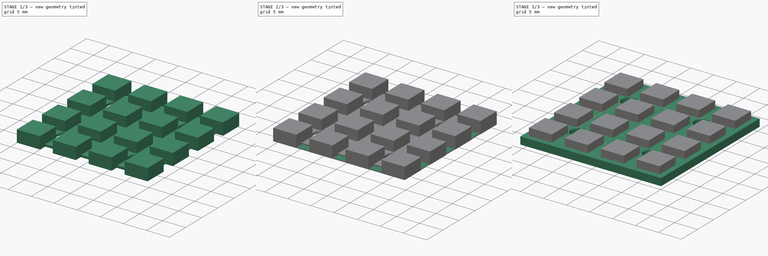
[diagram: build sequence overview — one tinted view per stage of 3, left to right]
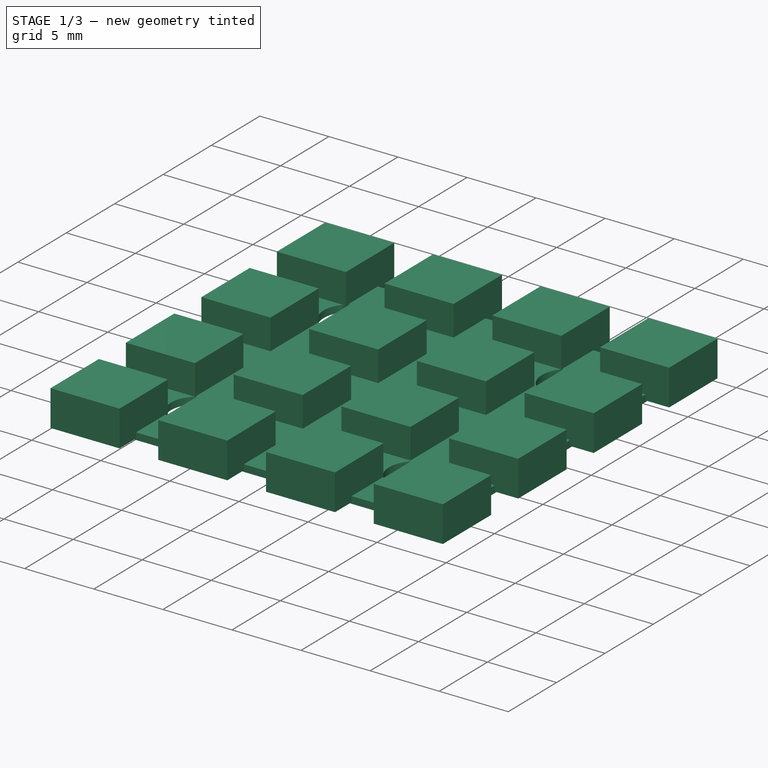
[diagram: stage 1 of 3 — iso view after this stage's code; geometry added in this stage tinted green]
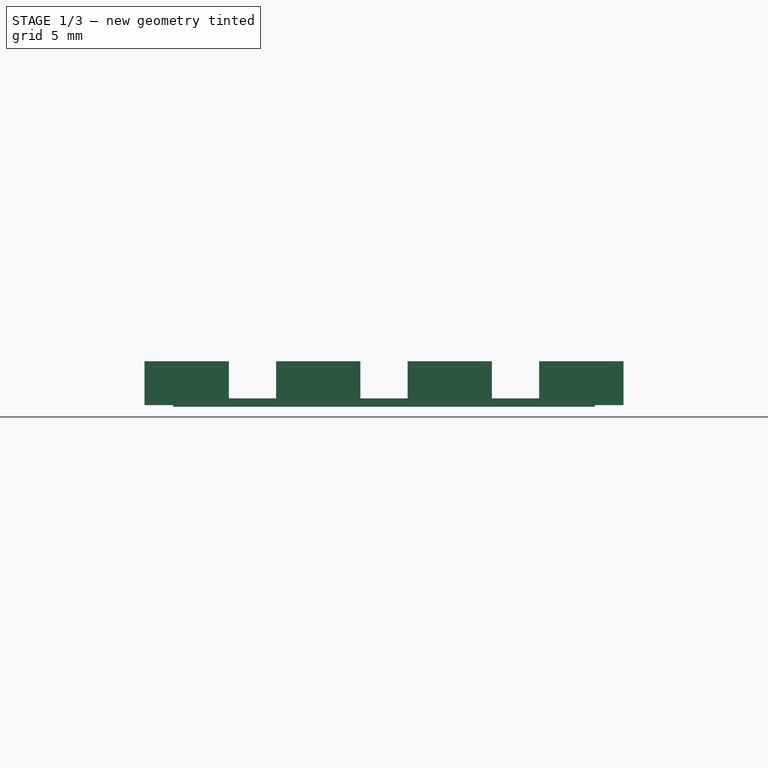
[diagram: stage 1 of 3 — front view after this stage's code; geometry added in this stage tinted green]
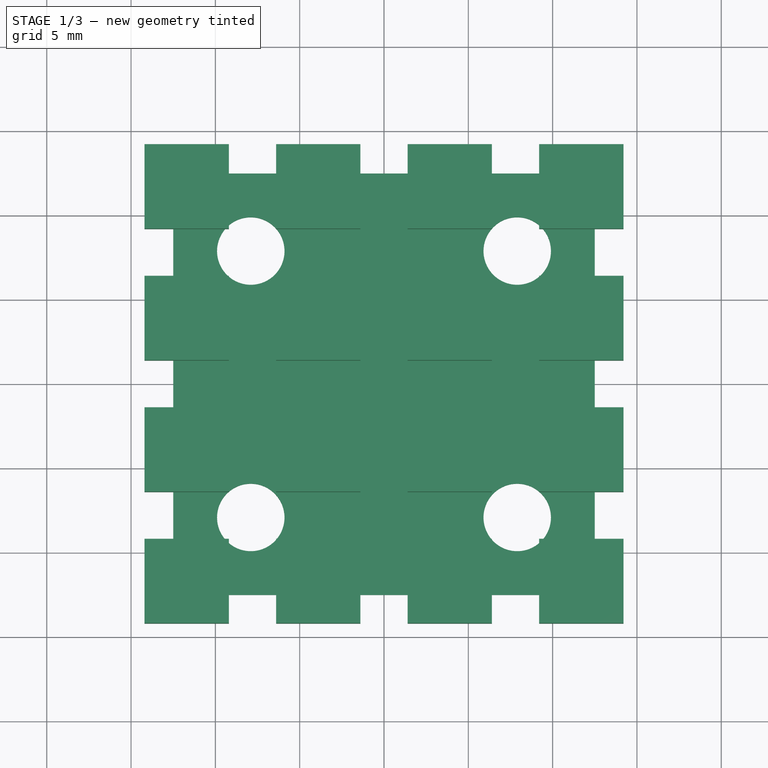
[diagram: stage 1 of 3 — top view after this stage's code; geometry added in this stage tinted green]
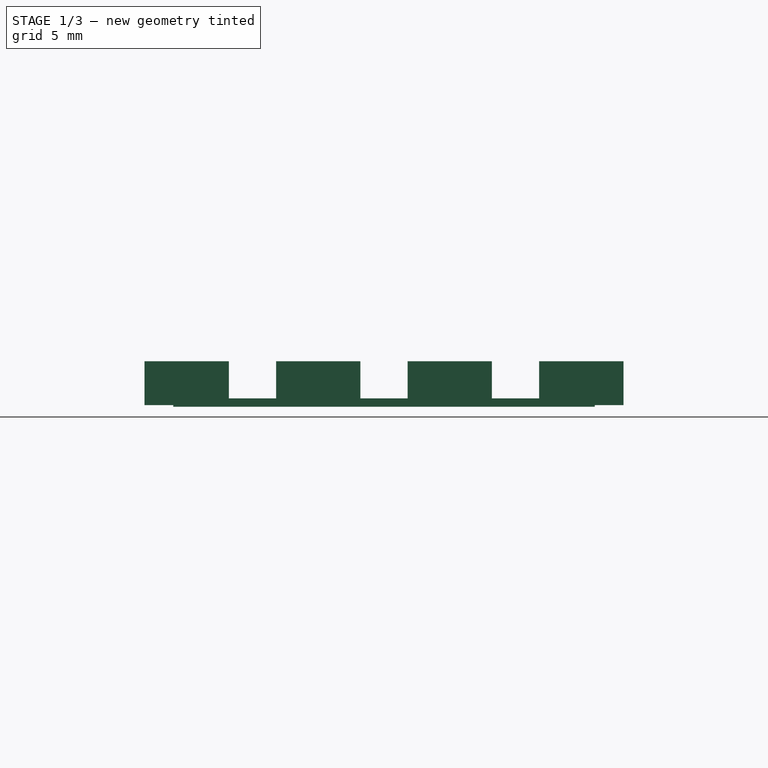
[diagram: stage 1 of 3 — right view after this stage's code; geometry added in this stage tinted green]
FCSTD DOCUMENT  (FreeCAD 0.19R23323 (Git))
Label: WS2812B 4x4
License: All rights reserved
LicenseURL: http://en.wikipedia.org/wiki/All_rights_reserved
objects: Sketcher::SketchObject×5, PartDesign::Pad×5, PartDesign::Body×3, PartDesign::LinearPattern×3, PartDesign::MultiTransform×2, PartDesign::Mirrored×1, Part::Compound×1
note: 25 computed .brp shape members not serialized (recipe doc carries the construction recipe); baked Part::Feature solids carry a one-line shape summary decoded from their .brp

FEATURE [PartDesign::Body] Body001  label="Electrical"
  Group = -> [Sketch004,Pad004,Sketch005,Pad005,MultiTransform003,LinearPattern003,Mirrored001]
  Origin = -> Origin001
  Tip = -> MultiTransform003
FEATURE [PartDesign::LinearPattern] LinearPattern007
  Direction = -> Y_Axis002
  Length = 23.4
  Occurrences = 4
FEATURE [PartDesign::LinearPattern] LinearPattern008
  Direction = -> X_Axis002
  Length = 23.4
  Occurrences = 4
FEATURE [Sketcher::SketchObject] Sketch008  label="l common plate"
  AttachmentOffset = pos=(0,0,0.5) rot=(0,0,1;0rad)
  MapMode = 5
  Placement = pos=(0,0,0.5) rot=(0,0,1;0rad)
  Support = -> [XY_Plane002]
  sketch-geometry (12):
    g0: LineSegment StartX=-12.5 StartY=12.5 StartZ=0 EndX=12.5 EndY=12.5 EndZ=0
    g1: LineSegment StartX=12.5 StartY=12.5 StartZ=0 EndX=12.5 EndY=-12.5 EndZ=0
    g2: LineSegment StartX=12.5 StartY=-12.5 StartZ=0 EndX=-12.5 EndY=-12.5 EndZ=0
    g3: LineSegment StartX=-12.5 StartY=-12.5 StartZ=0 EndX=-12.5 EndY=12.5 EndZ=0
    g4: LineSegment StartX=-7.9 StartY=7.9 StartZ=0 EndX=7.9 EndY=7.9 EndZ=0
    g5: LineSegment StartX=7.9 StartY=7.9 StartZ=0 EndX=7.9 EndY=-7.9 EndZ=0
    g6: LineSegment StartX=7.9 StartY=-7.9 StartZ=0 EndX=-7.9 EndY=-7.9 EndZ=0
    g7: LineSegment StartX=-7.9 StartY=-7.9 StartZ=0 EndX=-7.9 EndY=7.9 EndZ=0
    g8: Circle CenterX=-7.9 CenterY=7.9 CenterZ=0 NormalX=0 NormalY=0 NormalZ=1 AngleXU=0 Radius=2
    g9: Circle CenterX=7.9 CenterY=7.9 CenterZ=0 NormalX=0 NormalY=0 NormalZ=1 AngleXU=0 Radius=2
    g10: Circle CenterX=7.9 CenterY=-7.9 CenterZ=0 NormalX=0 NormalY=0 NormalZ=1 AngleXU=0 Radius=2
    g11: Circle CenterX=-7.9 CenterY=-7.9 CenterZ=0 NormalX=0 NormalY=0 NormalZ=1 AngleXU=0 Radius=2
  constraints (28):
    c: Coincident(g0,g1)
    c: Coincident(g1,g2)
    c: Coincident(g2,g3)
    c: Coincident(g3,g0)
    c: Horizontal(g2)
    c: Vertical(g3)
    c: Symmetric(g1,g0,g-1)
    c: Symmetric(g0,g0,g-2)
    c: Coincident(g4,g5)
    c: Coincident(g5,g6)
    c: Coincident(g6,g7)
    c: Coincident(g7,g4)
    c: Horizontal(g6)
    c: Vertical(g7)
    c: Symmetric(g5,g4,g-1)
    c: Symmetric(g4,g4,g-2)
    c: Coincident(g8,g4)
    c: Coincident(g9,g4)
    c: Coincident(g10,g5)
    c: Coincident(g11,g6)
    c: Equal(g10,g11)
    c: Equal(g11,g8)
    c: Equal(g8,g9)
    c: Radius(g9) = 2
    c: DistanceX(g4,g4) = 15.8
    c: Equal(g5,g4)
    c: Equal(g1,g0)
    c: DistanceX(g0,g0) = 25
FEATURE [PartDesign::Pad] Pad007  label="L Common plate"
  AllowMultiFace = false
  Direction = (1,1,1)
  Length = 0.5
  Length2 = 100
  Profile = -> Sketch008
  Type = 0
FEATURE [Sketcher::SketchObject] Sketch009  label="l first LED"
  AttachmentOffset = pos=(0,0,3.2) rot=(0,0,1;0rad)
  MapMode = 5
  Placement = pos=(0,0,3.2) rot=(0,0,1;0rad)
  Support = -> [XY_Plane]
  sketch-geometry (6):
    g0: LineSegment StartX=-14.2 StartY=-9.2 StartZ=0 EndX=-9.2 EndY=-9.2 EndZ=0
    g1: LineSegment StartX=-9.2 StartY=-9.2 StartZ=0 EndX=-9.2 EndY=-14.2 EndZ=0
    g2: LineSegment StartX=-9.2 StartY=-14.2 StartZ=0 EndX=-14.2 EndY=-14.2 EndZ=0
    g3: LineSegment StartX=-14.2 StartY=-14.2 StartZ=0 EndX=-14.2 EndY=-9.2 EndZ=0
    g4: LineSegment StartX=-9.2 StartY=-14.2 StartZ=0 EndX=0 EndY=-14.2 EndZ=0
    g5: LineSegment StartX=-14.2 StartY=-9.2 StartZ=0 EndX=-14.2 EndY=0 EndZ=0
  constraints (18):
    c: Coincident(g0,g1)
    c: Coincident(g1,g2)
    c: Coincident(g2,g3)
    c: Coincident(g3,g0)
    c: Horizontal(g0)
    c: Horizontal(g2)
    c: Vertical(g1)
    c: Vertical(g3)
    c: Equal(g1,g0)
    c: DistanceX(g0,g0) = 5
    c: DistanceX(g2,g-1) = 14.2
    c: Coincident(g4,g1)
    c: Horizontal(g4)
    c: Coincident(g5,g0)
    c: Vertical(g5)
    c: Equal(g5,g4)
    c: PointOnObject(g5,g-1)
    c: PointOnObject(g4,g-2)
FEATURE [PartDesign::Pad] Pad008  label="L First LED"
  AllowMultiFace = false
  BaseFeature = -> Pad007
  Direction = (1,1,1)
  Length = 2.6
  Length2 = 100
  Profile = -> Sketch009
  Reversed = true
  Type = 0
FEATURE [PartDesign::MultiTransform] MultiTransform004  label="L Other leds"
  BaseFeature = -> Pad008
  Originals = -> [Pad008]
  Transformations = -> [LinearPattern008,LinearPattern007]
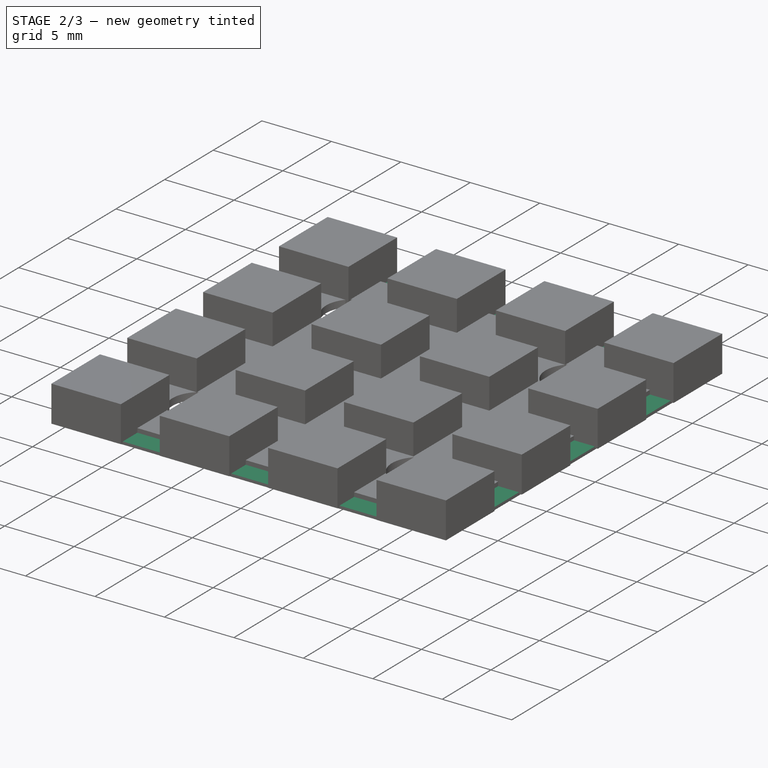
[diagram: stage 2 of 3 — iso view after this stage's code; geometry added in this stage tinted green]
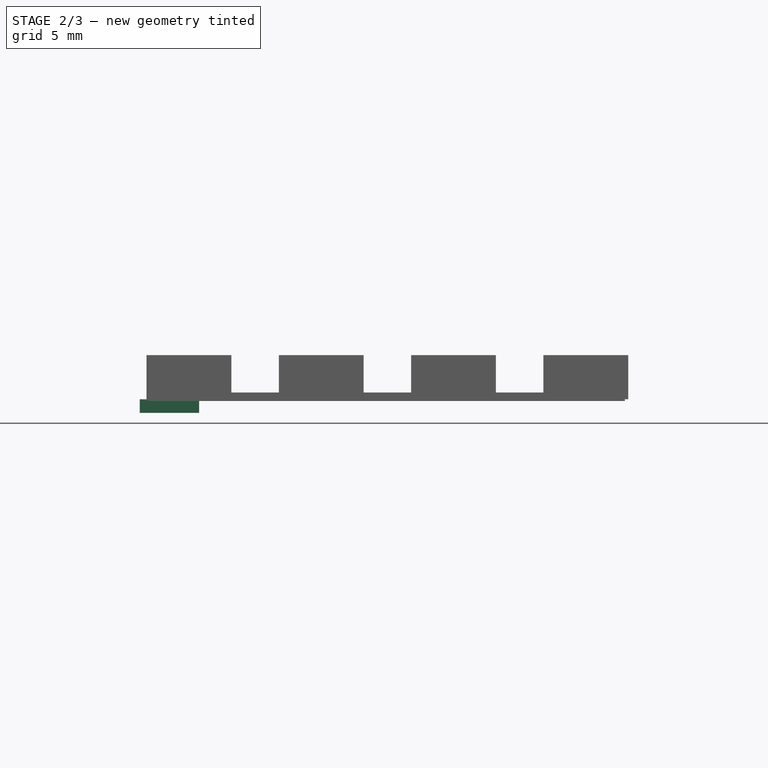
[diagram: stage 2 of 3 — front view after this stage's code; geometry added in this stage tinted green]
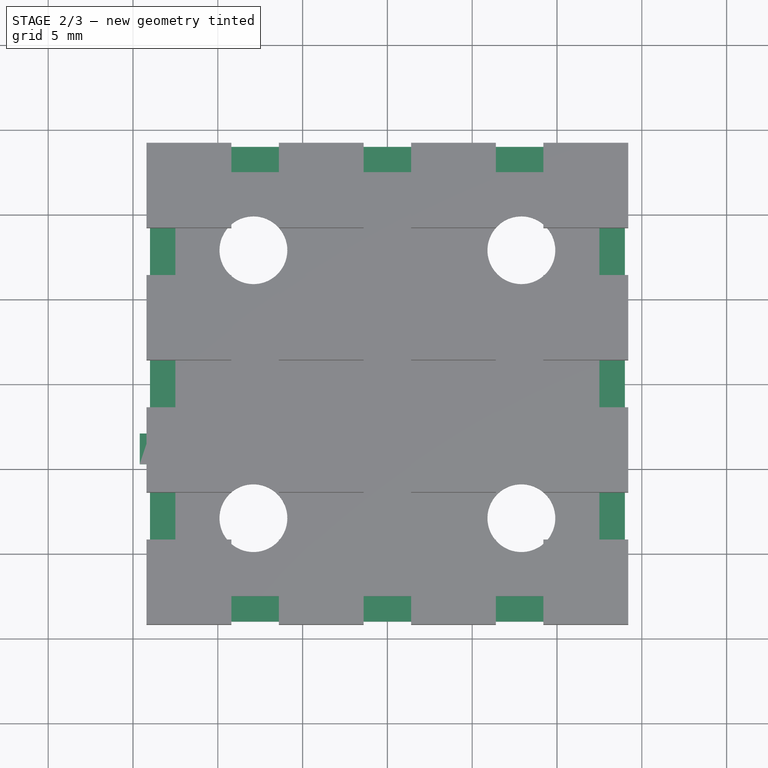
[diagram: stage 2 of 3 — top view after this stage's code; geometry added in this stage tinted green]
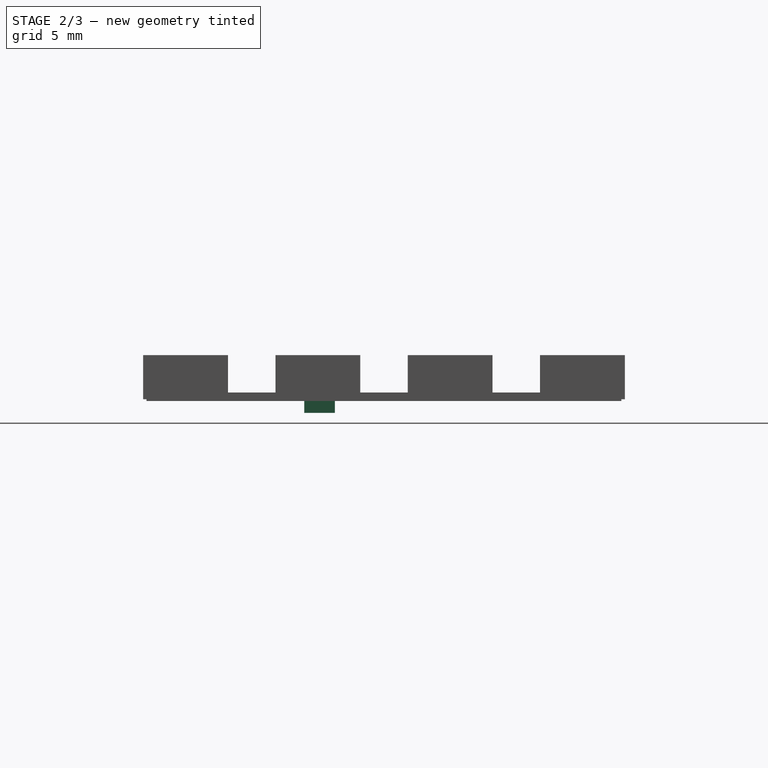
[diagram: stage 2 of 3 — right view after this stage's code; geometry added in this stage tinted green]
FEATURE [PartDesign::Body] Body  label="PCB"
  Group = -> [Sketch,Pad]
  Origin = -> Origin
  Tip = -> Pad
FEATURE [Sketcher::SketchObject] Sketch004  label="e common pad"
  AttachmentOffset = pos=(0,0,0.5) rot=(0,0,1;0rad)
  MapMode = 5
  Placement = pos=(0,0,0.5) rot=(0,0,1;0rad)
  Support = -> [XY_Plane001]
  sketch-geometry (12):
    g0: LineSegment StartX=-14 StartY=14 StartZ=0 EndX=14 EndY=14 EndZ=0
    g1: LineSegment StartX=14 StartY=14 StartZ=0 EndX=14 EndY=-14 EndZ=0
    g2: LineSegment StartX=14 StartY=-14 StartZ=0 EndX=-14 EndY=-14 EndZ=0
    g3: LineSegment StartX=-14 StartY=-14 StartZ=0 EndX=-14 EndY=14 EndZ=0
    g4: LineSegment StartX=-7.9 StartY=7.9 StartZ=0 EndX=7.9 EndY=7.9 EndZ=0
    g5: LineSegment StartX=7.9 StartY=7.9 StartZ=0 EndX=7.9 EndY=-7.9 EndZ=0
    g6: LineSegment StartX=7.9 StartY=-7.9 StartZ=0 EndX=-7.9 EndY=-7.9 EndZ=0
    g7: LineSegment StartX=-7.9 StartY=-7.9 StartZ=0 EndX=-7.9 EndY=7.9 EndZ=0
    g8: Circle CenterX=-7.9 CenterY=7.9 CenterZ=0 NormalX=0 NormalY=0 NormalZ=1 AngleXU=0 Radius=2
    g9: Circle CenterX=7.9 CenterY=7.9 CenterZ=0 NormalX=0 NormalY=0 NormalZ=1 AngleXU=0 Radius=2
    g10: Circle CenterX=7.9 CenterY=-7.9 CenterZ=0 NormalX=0 NormalY=0 NormalZ=1 AngleXU=0 Radius=2
    g11: Circle CenterX=-7.9 CenterY=-7.9 CenterZ=0 NormalX=0 NormalY=0 NormalZ=1 AngleXU=0 Radius=2
  constraints (28):
    c: Coincident(g0,g1)
    c: Coincident(g1,g2)
    c: Coincident(g2,g3)
    c: Coincident(g3,g0)
    c: Horizontal(g2)
    c: Vertical(g3)
    c: Symmetric(g1,g0,g-1)
    c: Symmetric(g0,g0,g-2)
    c: Coincident(g4,g5)
    c: Coincident(g5,g6)
    c: Coincident(g6,g7)
    c: Coincident(g7,g4)
    c: Horizontal(g6)
    c: Vertical(g7)
    c: Symmetric(g5,g4,g-1)
    c: Symmetric(g4,g4,g-2)
    c: Coincident(g8,g4)
    c: Coincident(g9,g4)
    c: Coincident(g10,g5)
    c: Coincident(g11,g6)
    c: Equal(g10,g11)
    c: Equal(g11,g8)
    c: Equal(g8,g9)
    c: Radius(g9) = 2
    c: DistanceX(g4,g4) = 15.8
    c: Equal(g5,g4)
    c: Equal(g1,g0)
    c: DistanceX(g0,g0) = 28
FEATURE [Sketcher::SketchObject] Sketch005  label="e soldering pad"
  AttachmentOffset = pos=(0,0,-0.2) rot=(0,0,1;0rad)
  MapMode = 5
  Placement = pos=(0,0,-0.2) rot=(0,0,1;0rad)
  Support = -> [XY_Plane001]
  sketch-geometry (4):
    g0: LineSegment StartX=-14.6 StartY=-2.9 StartZ=0 EndX=-11.1 EndY=-2.9 EndZ=0
    g1: LineSegment StartX=-11.1 StartY=-2.9 StartZ=0 EndX=-11.1 EndY=-4.7 EndZ=0
    g2: LineSegment StartX=-11.1 StartY=-4.7 StartZ=0 EndX=-14.6 EndY=-4.7 EndZ=0
    g3: LineSegment StartX=-14.6 StartY=-4.7 StartZ=0 EndX=-14.6 EndY=-2.9 EndZ=0
  constraints (12):
    c: Coincident(g0,g1)
    c: Coincident(g1,g2)
    c: Coincident(g2,g3)
    c: Coincident(g3,g0)
    c: Horizontal(g0)
    c: Horizontal(g2)
    c: Vertical(g1)
    c: Vertical(g3)
    c: DistanceX(g0,g0) = 3.5
    c: DistanceY(g3,g3) = 1.8
    c: DistanceX(g0,g-1) = 14.6
    c: DistanceY(g2,g-1) = 4.7
FEATURE [PartDesign::LinearPattern] LinearPattern003
  Direction = -> Y_Axis001
  Length = 7.6
  Occurrences = 4
FEATURE [PartDesign::Pad] Pad004  label="E Common pad"
  AllowMultiFace = false
  Direction = (1,1,1)
  Length = 0.2
  Length2 = 100
  Profile = -> Sketch004
  Type = 0
FEATURE [PartDesign::Pad] Pad005  label="E First soldering pad"
  AllowMultiFace = false
  BaseFeature = -> Pad004
  Direction = (1,1,1)
  Length = 0.8
  Length2 = 100
  Profile = -> Sketch005
  Type = 0
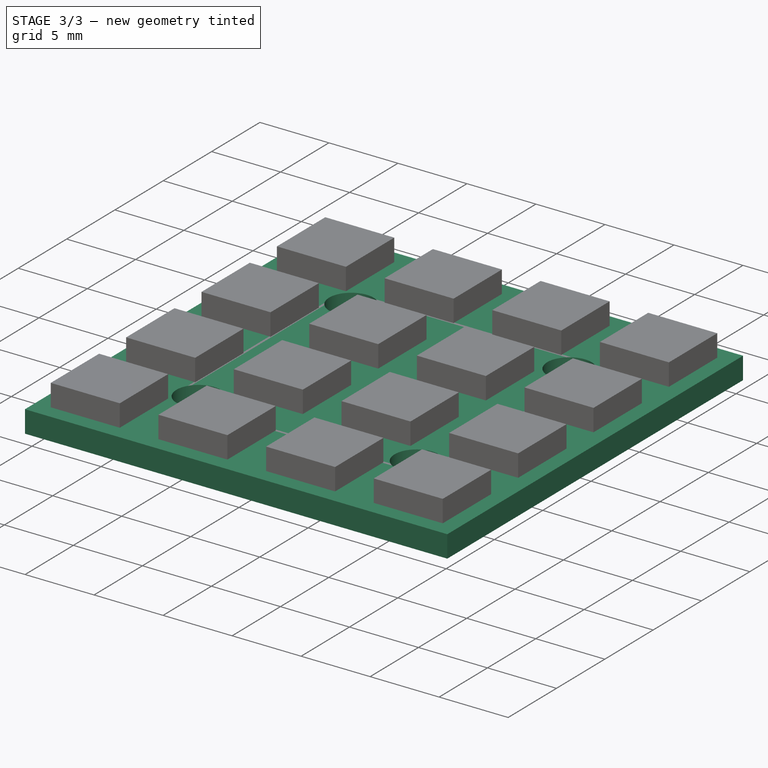
[diagram: stage 3 of 3 — iso view after this stage's code; geometry added in this stage tinted green]
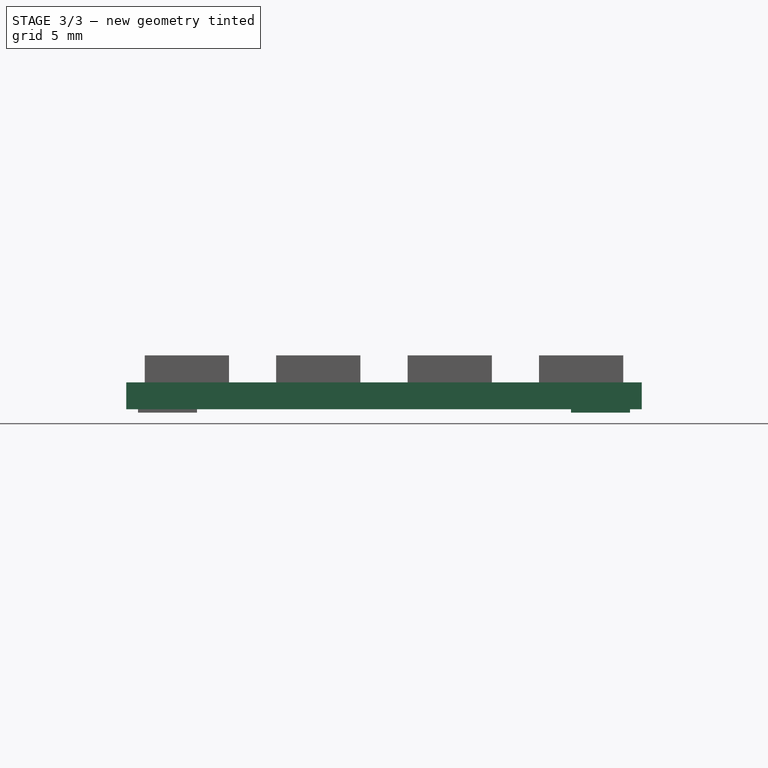
[diagram: stage 3 of 3 — front view after this stage's code; geometry added in this stage tinted green]
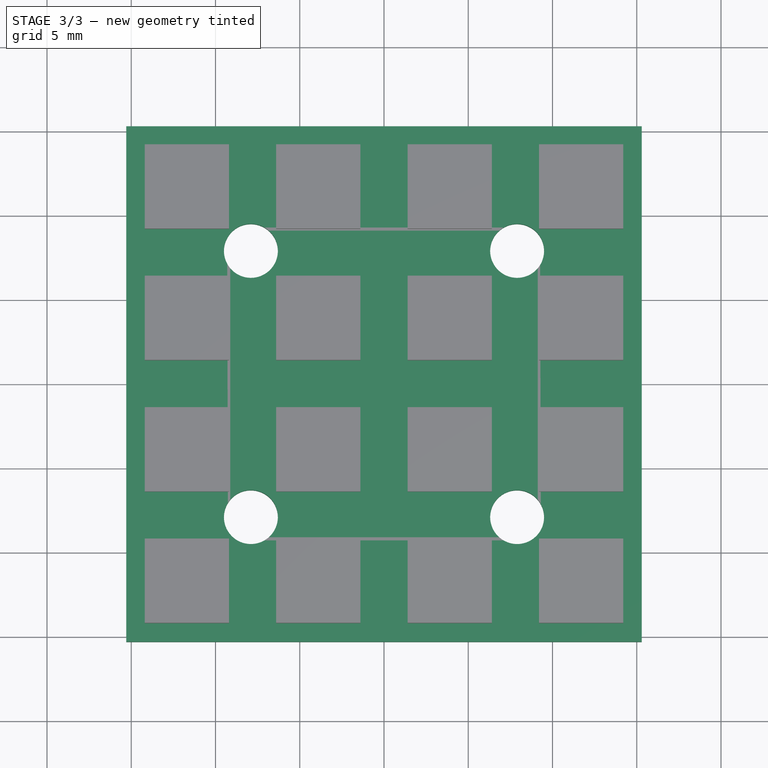
[diagram: stage 3 of 3 — top view after this stage's code; geometry added in this stage tinted green]
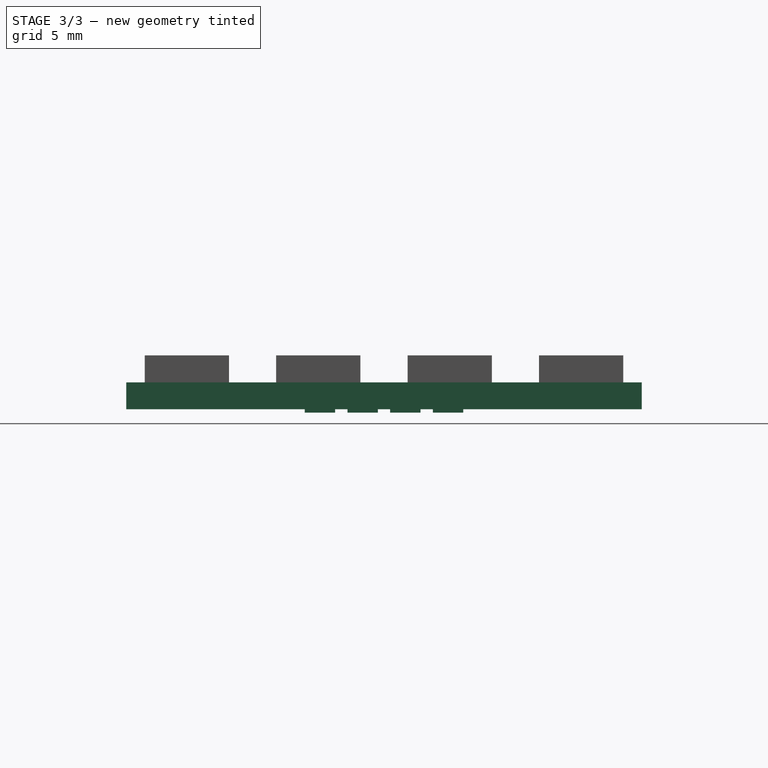
[diagram: stage 3 of 3 — right view after this stage's code; geometry added in this stage tinted green]
FEATURE [Sketcher::SketchObject] Sketch  label="p board"
  MapMode = 5
  Support = -> [XY_Plane]
  sketch-geometry (12):
    g0: LineSegment StartX=-15.3 StartY=15.3 StartZ=0 EndX=15.3 EndY=15.3 EndZ=0
    g1: LineSegment StartX=15.3 StartY=15.3 StartZ=0 EndX=15.3 EndY=-15.3 EndZ=0
    g2: LineSegment StartX=15.3 StartY=-15.3 StartZ=0 EndX=-15.3 EndY=-15.3 EndZ=0
    g3: LineSegment StartX=-15.3 StartY=-15.3 StartZ=0 EndX=-15.3 EndY=15.3 EndZ=0
    g4: LineSegment StartX=-7.9 StartY=7.9 StartZ=0 EndX=7.9 EndY=7.9 EndZ=0
    g5: LineSegment StartX=7.9 StartY=7.9 StartZ=0 EndX=7.9 EndY=-7.9 EndZ=0
    g6: LineSegment StartX=7.9 StartY=-7.9 StartZ=0 EndX=-7.9 EndY=-7.9 EndZ=0
    g7: LineSegment StartX=-7.9 StartY=-7.9 StartZ=0 EndX=-7.9 EndY=7.9 EndZ=0
    g8: Circle CenterX=-7.9 CenterY=7.9 CenterZ=0 NormalX=0 NormalY=0 NormalZ=1 AngleXU=0 Radius=1.6
    g9: Circle CenterX=7.9 CenterY=7.9 CenterZ=0 NormalX=0 NormalY=0 NormalZ=1 AngleXU=0 Radius=1.6
    g10: Circle CenterX=7.9 CenterY=-7.9 CenterZ=0 NormalX=0 NormalY=0 NormalZ=1 AngleXU=0 Radius=1.6
    g11: Circle CenterX=-7.9 CenterY=-7.9 CenterZ=0 NormalX=0 NormalY=0 NormalZ=1 AngleXU=0 Radius=1.6
  constraints (28):
    c: Coincident(g0,g1)
    c: Coincident(g1,g2)
    c: Coincident(g2,g3)
    c: Coincident(g3,g0)
    c: Horizontal(g2)
    c: Vertical(g3)
    c: Symmetric(g1,g0,g-1)
    c: Symmetric(g0,g0,g-2)
    c: Coincident(g4,g5)
    c: Coincident(g5,g6)
    c: Coincident(g6,g7)
    c: Coincident(g7,g4)
    c: Horizontal(g6)
    c: Vertical(g7)
    c: Symmetric(g5,g4,g-1)
    c: Symmetric(g4,g4,g-2)
    c: Coincident(g8,g4)
    c: Coincident(g9,g4)
    c: Coincident(g10,g5)
    c: Coincident(g11,g6)
    c: Equal(g10,g11)
    c: Equal(g11,g8)
    c: Equal(g8,g9)
    c: Radius(g9) = 1.6
    c: DistanceX(g4,g4) = 15.8
    c: Equal(g5,g4)
    c: Equal(g1,g0)
    c: DistanceX(g0,g0) = 30.6
FEATURE [PartDesign::Pad] Pad  label="P Board"
  AllowMultiFace = false
  Direction = (1,1,1)
  Length = 1.6
  Length2 = 100
  Profile = -> Sketch
  Type = 0
FEATURE [PartDesign::Mirrored] Mirrored001
  MirrorPlane = -> YZ_Plane001
FEATURE [PartDesign::MultiTransform] MultiTransform003  label="E Other soldering pads"
  BaseFeature = -> Pad005
  Originals = -> [Pad005]
  Transformations = -> [LinearPattern003,Mirrored001]
FEATURE [PartDesign::Body] Body002  label="LEDs"
  Group = -> [Sketch008,Pad007,Sketch009,Pad008,MultiTransform004,LinearPattern008,LinearPattern007]
  Origin = -> Origin002
  Tip = -> MultiTransform004
FEATURE [Part::Compound] Compound  label="WS2812B 4x4"
  Links = -> [Body,Body001,Body002]
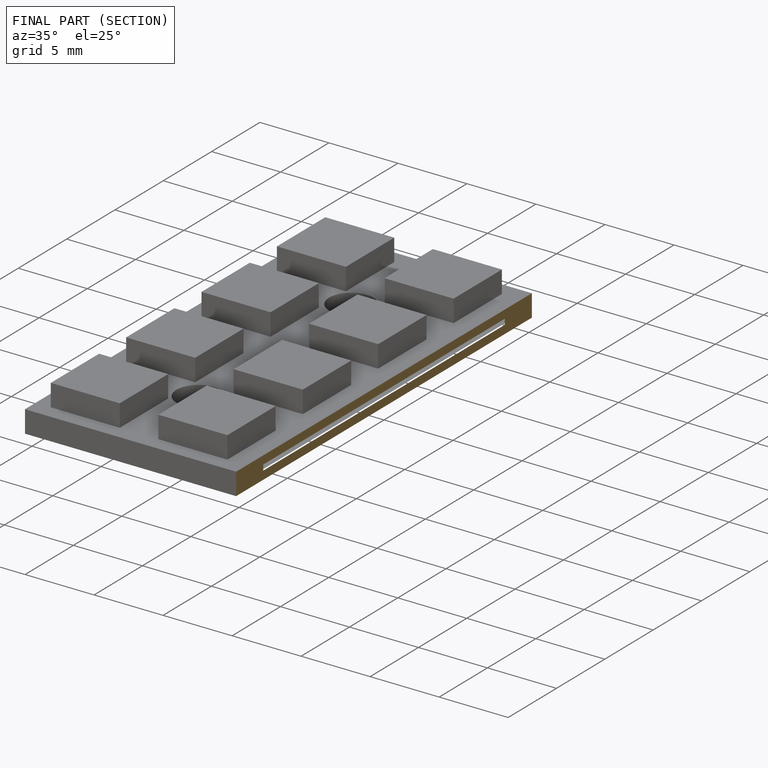
[diagram: finished part — half-section view (interior)]
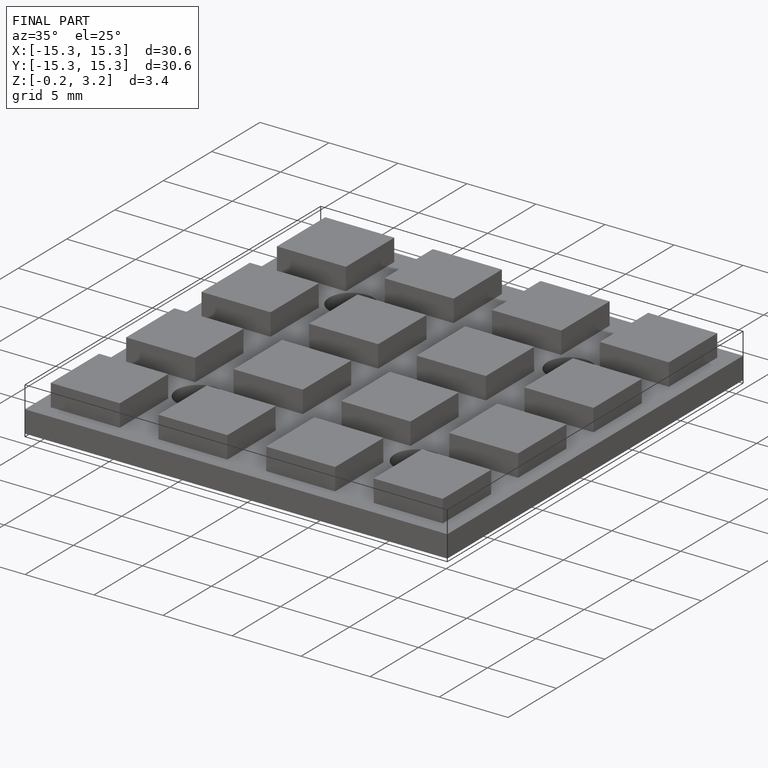
[diagram: finished part — iso view with bounding-box wireframe]
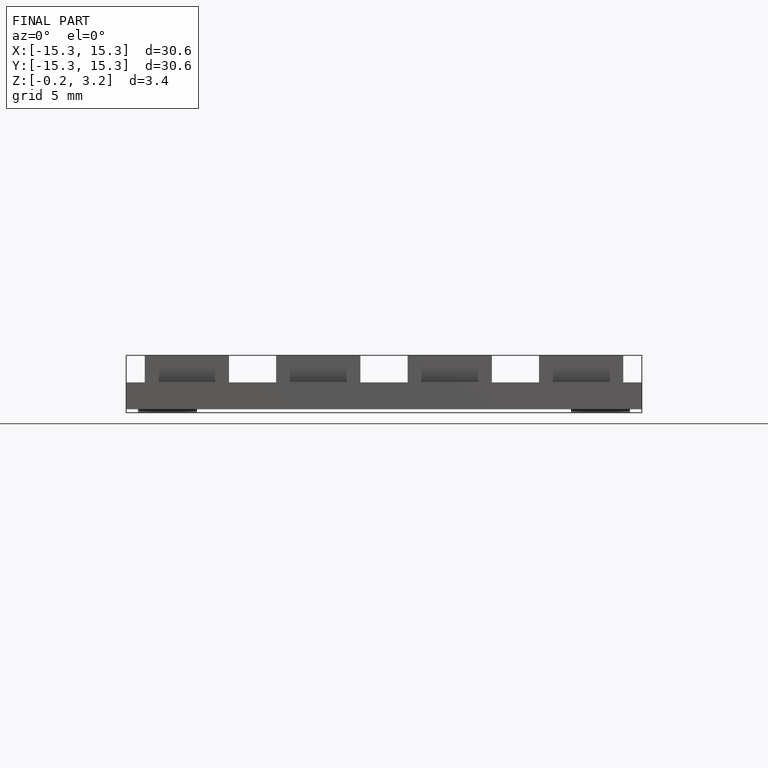
[diagram: finished part — front view with bounding-box wireframe]
